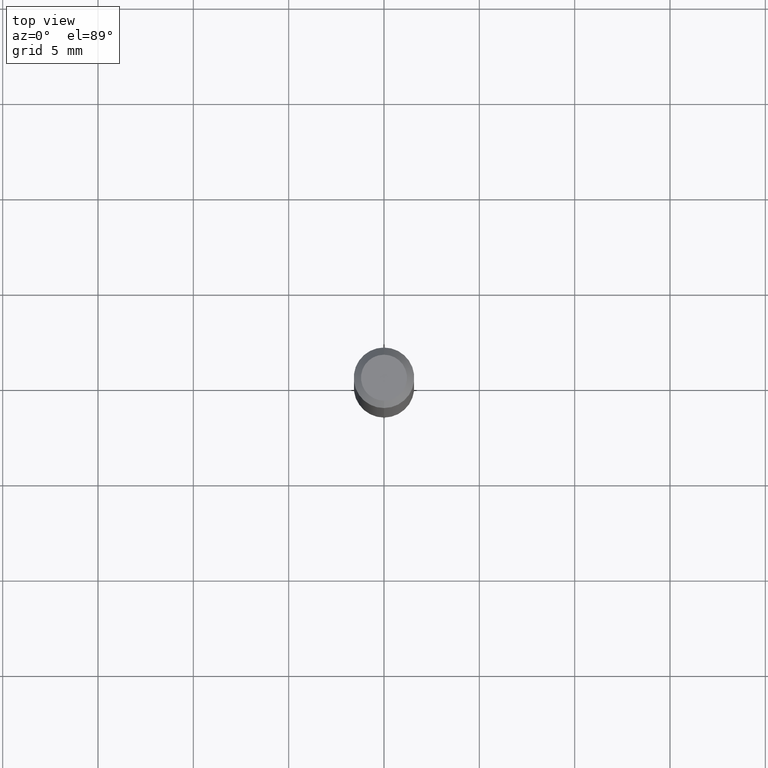
[diagram: clean part render]
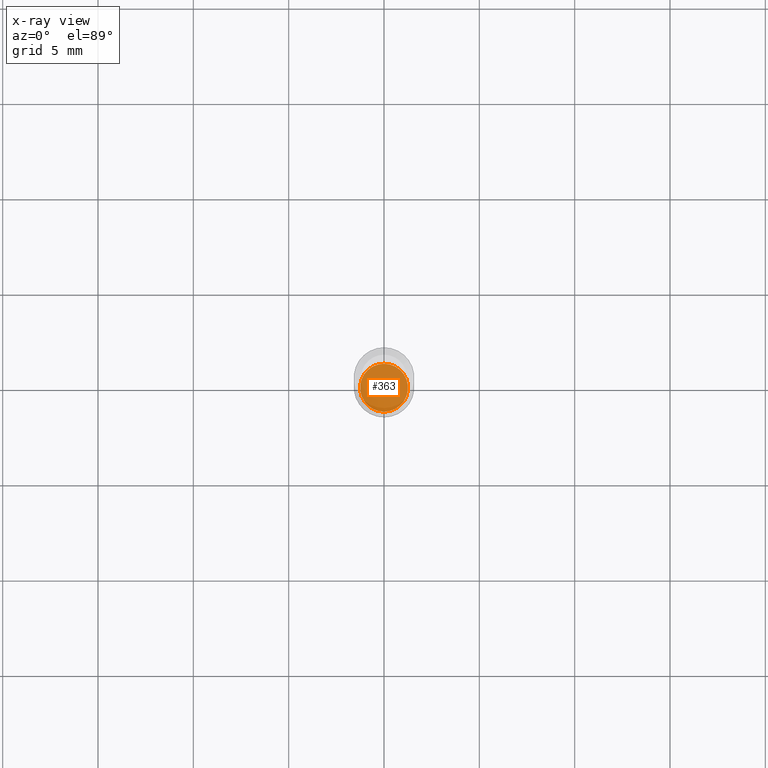
[diagram: x-ray — body ghosted, one internal face saturated and labeled with its STEP entity id]
A machine part, top view, then the same camera in x-ray: the body is ghosted and one INTERNAL B-rep face — a face not visible from any outside direction — is saturated and labeled: STEP entity #363.
In plain terms, the highlighted planar face has unit normal (-0, 0, 1).
Its self-contained STEP definition (entity closure, byte-faithful):
#9 = DIRECTION ( 'NONE',  ( -2.445455409142924430E-29, 3.491500524170105647E-15, 1.000000000000000000 ) ) ;
#15 = CARTESIAN_POINT ( 'NONE',  ( 2.934546490971509876E-29, -4.189800629004127249E-15, -1.200000000000000178 ) ) ;
#33 = CARTESIAN_POINT ( 'NONE',  ( -3.456566525454408447E-16, -0.04950000000000419342, -1.199999999999999956 ) ) ;
#54 = DIRECTION ( 'NONE',  ( -2.445455409142924430E-29, 3.491500524170105647E-15, 1.000000000000000000 ) ) ;
#65 = CIRCLE ( 'NONE', #406, 0.04950000000000000233 ) ;
#83 = VERTEX_POINT ( 'NONE', #33 ) ;
#108 = FACE_OUTER_BOUND ( 'NONE', #369, .T. ) ;
#111 = PLANE ( 'NONE',  #225 ) ;
#214 = EDGE_CURVE ( 'NONE', #314, #83, #243, .T. ) ;
#217 = DIRECTION ( 'NONE',  ( -6.982962677686265922E-15, -1.000000000000000000, 2.759442417842689940E-15 ) ) ;
#219 = DIRECTION ( 'NONE',  ( -6.982962677686265922E-15, -1.000000000000000000, 3.491500524170106041E-15 ) ) ;
#225 = AXIS2_PLACEMENT_3D ( 'NONE', #15, #494, #219 ) ;
#243 = CIRCLE ( 'NONE', #391, 0.04950000000000000233 ) ;
#309 = CARTESIAN_POINT ( 'NONE',  ( 2.934546490971509876E-29, -4.189800629004127249E-15, -1.200000000000000178 ) ) ;
#314 = VERTEX_POINT ( 'NONE', #460 ) ;
#321 = ORIENTED_EDGE ( 'NONE', *, *, #214, .F. ) ;
#363 = ADVANCED_FACE ( 'NONE', ( #108 ), #111, .F. ) ;
#368 = CARTESIAN_POINT ( 'NONE',  ( 2.934546490971509876E-29, -4.189800629004127249E-15, -1.200000000000000178 ) ) ;
#369 = EDGE_LOOP ( 'NONE', ( #420, #321 ) ) ;
#391 = AXIS2_PLACEMENT_3D ( 'NONE', #368, #9, #479 ) ;
#406 = AXIS2_PLACEMENT_3D ( 'NONE', #309, #54, #217 ) ;
#417 = EDGE_CURVE ( 'NONE', #83, #314, #65, .T. ) ;
#420 = ORIENTED_EDGE ( 'NONE', *, *, #417, .F. ) ;
#460 = CARTESIAN_POINT ( 'NONE',  ( 3.534950110406793936E-16, 0.04949999999999581124, -1.200000000000000400 ) ) ;
#479 = DIRECTION ( 'NONE',  ( -6.982962677686265922E-15, -1.000000000000000000, 2.759442417842689940E-15 ) ) ;
#494 = DIRECTION ( 'NONE',  ( -2.445455409142923869E-29, 3.491500524170106041E-15, 1.000000000000000000 ) ) ;